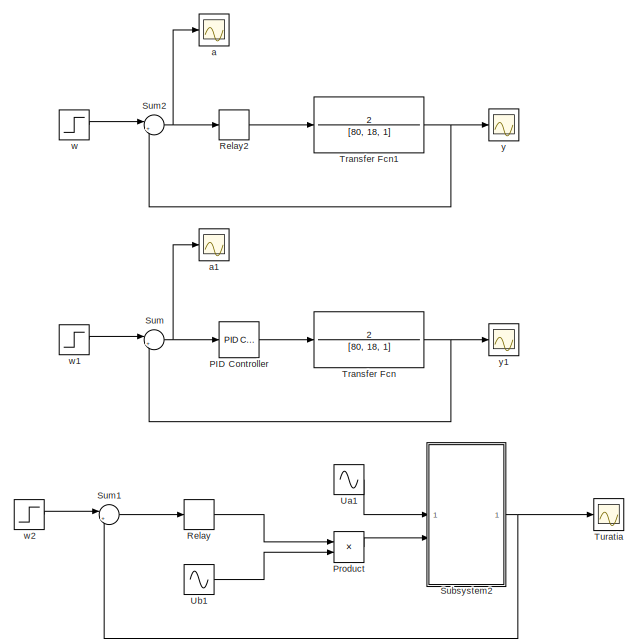
[diagram: root canvas - part 1/2, top center region]
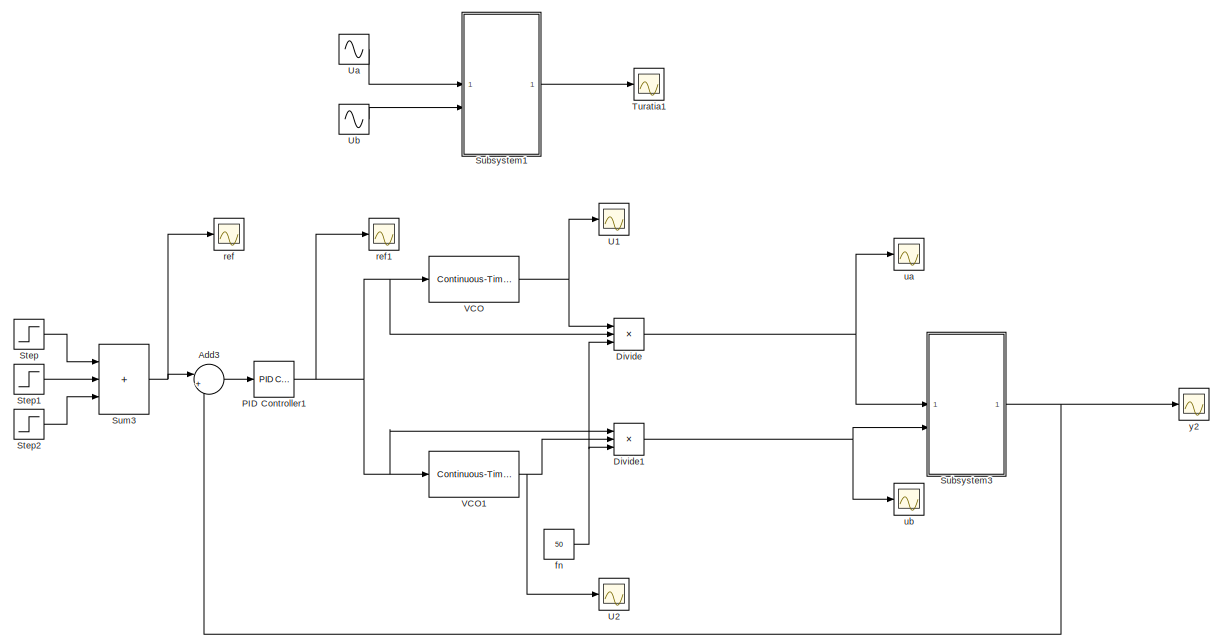
[diagram: root canvas - part 2/2, full width, bottom band]
MODEL slx_cc741e9ad4f9
KIND model
CONFIG AbsTol = auto
CONFIG EnableMultiTasking = off
CONFIG FixedStep = 0.001
CONFIG MaxStep = auto
CONFIG MinStep = auto
CONFIG RelTol = 1e-3
CONFIG SampleTimeConstraint = Unconstrained
CONFIG SolverName = VariableStepAuto
CONFIG StartTime = 0.0
CONFIG StopTime = 15
BLOCK [Sum] Add3
  Inputs = |+-
BLOCK [Product] Divide
  Inputs = **/
BLOCK [Product] Divide1
  Inputs = **/
BLOCK [Reference] PID Controller  REF=slpidlib/PID Controller
  LibrarySourceBlock = simulink/Continuous/PID Controller
  SourceBlock = slpidlib/PID Controller
  SourceType = PID 1dof
BLOCK [Reference] PID Controller1  REF=slpidlib/PID Controller
  LibrarySourceBlock = simulink/Continuous/PID Controller
  SourceBlock = slpidlib/PID Controller
  SourceType = PID 1dof
BLOCK [Product] Product
BLOCK [Relay] Relay
  OffOutputValue = -1
  OffSwitchValue = -0.01
  OnSwitchValue = 0.01
BLOCK [Relay] Relay2
  OffOutputValue = -1
  OffSwitchValue = -0.01
  OnSwitchValue = 0.01
BLOCK [Step] Step
  After = 1000
  SampleTime = 0
  Time = 0
BLOCK [Step] Step1
  After = 1000
  SampleTime = 0
  Time = 5
BLOCK [Step] Step2
  After = -500
  SampleTime = 0
  Time = 10
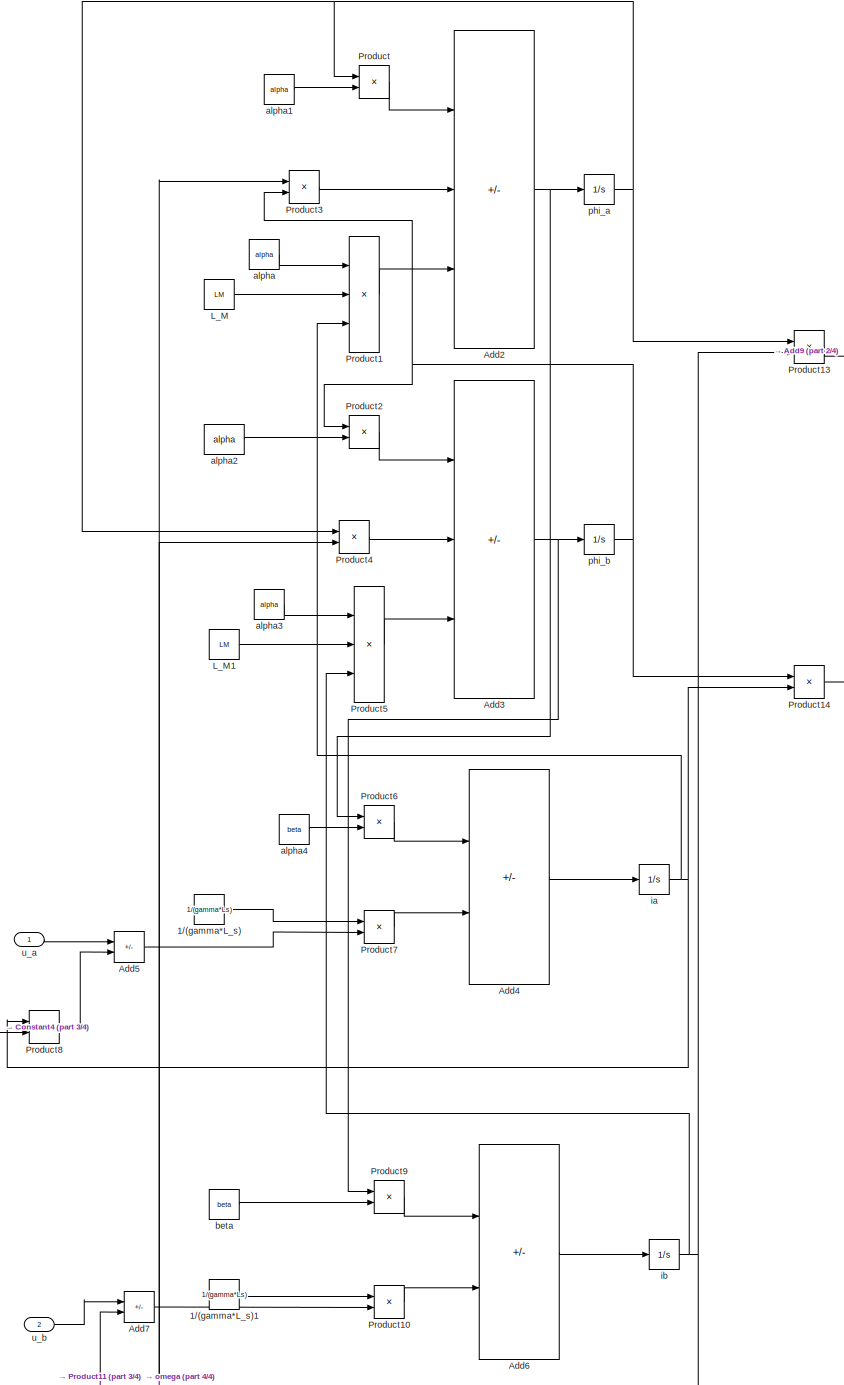
[diagram: Subsystem1 - part 1/4, center side, full height]
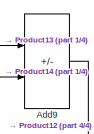
[diagram: Subsystem1 - part 2/4, top right region]
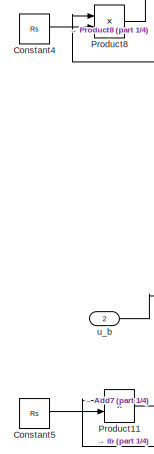
[diagram: Subsystem1 - part 3/4, bottom left region]
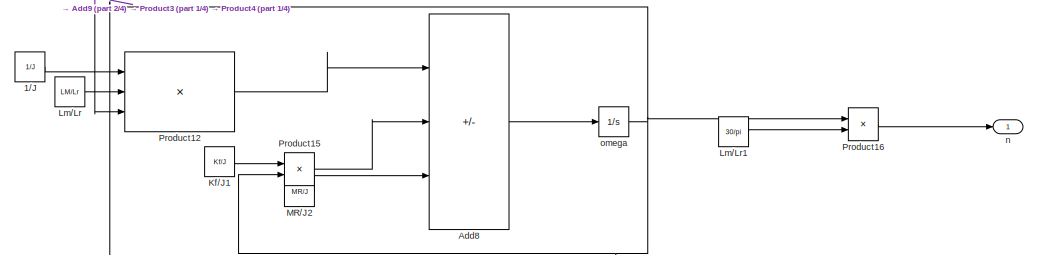
[diagram: Subsystem1 - part 4/4, full width, bottom band]
BLOCK [SubSystem] Subsystem1
BLOCK [Constant] Subsystem1/1//(gamma*L_s)
  Value = 1/(gamma*Ls)
BLOCK [Constant] Subsystem1/1//(gamma*L_s)1
  Value = 1/(gamma*Ls)
BLOCK [Constant] Subsystem1/1//J
  Value = 1/J
BLOCK [Sum] Subsystem1/Add2
  IconShape = rectangular
  Inputs = --+
BLOCK [Sum] Subsystem1/Add3
  IconShape = rectangular
  Inputs = -++
BLOCK [Sum] Subsystem1/Add4
  IconShape = rectangular
  Inputs = -+
BLOCK [Sum] Subsystem1/Add5
  IconShape = rectangular
  Inputs = +-
BLOCK [Sum] Subsystem1/Add6
  IconShape = rectangular
  Inputs = -+
BLOCK [Sum] Subsystem1/Add7
  IconShape = rectangular
  Inputs = +-
BLOCK [Sum] Subsystem1/Add8
  IconShape = rectangular
  Inputs = +--
BLOCK [Sum] Subsystem1/Add9
  IconShape = rectangular
  Inputs = +-
BLOCK [Constant] Subsystem1/Constant4
  Value = Rs
BLOCK [Constant] Subsystem1/Constant5
  Value = Rs
BLOCK [Constant] Subsystem1/Kf//J1
  Value = Kf/J
BLOCK [Constant] Subsystem1/L_M
  Value = LM
BLOCK [Constant] Subsystem1/L_M1
  Value = LM
BLOCK [Constant] Subsystem1/Lm//Lr
  Value = LM/Lr
BLOCK [Constant] Subsystem1/Lm//Lr1
  Value = 30/pi
BLOCK [Constant] Subsystem1/MR//J2
  Value = MR/J
BLOCK [Product] Subsystem1/Product
BLOCK [Product] Subsystem1/Product1
  Inputs = 3
BLOCK [Product] Subsystem1/Product10
BLOCK [Product] Subsystem1/Product11
BLOCK [Product] Subsystem1/Product12
  Inputs = 3
BLOCK [Product] Subsystem1/Product13
BLOCK [Product] Subsystem1/Product14
BLOCK [Product] Subsystem1/Product15
BLOCK [Product] Subsystem1/Product16
BLOCK [Product] Subsystem1/Product2
BLOCK [Product] Subsystem1/Product3
BLOCK [Product] Subsystem1/Product4
BLOCK [Product] Subsystem1/Product5
  Inputs = 3
BLOCK [Product] Subsystem1/Product6
BLOCK [Product] Subsystem1/Product7
BLOCK [Product] Subsystem1/Product8
BLOCK [Product] Subsystem1/Product9
BLOCK [Constant] Subsystem1/alpha
  Value = alpha
BLOCK [Constant] Subsystem1/alpha1
  Value = alpha
BLOCK [Constant] Subsystem1/alpha2
  Value = alpha
BLOCK [Constant] Subsystem1/alpha3
  Value = alpha
BLOCK [Constant] Subsystem1/alpha4
  Value = beta
BLOCK [Constant] Subsystem1/beta
  Value = beta
BLOCK [Integrator] Subsystem1/ia
BLOCK [Integrator] Subsystem1/ib
BLOCK [Outport] Subsystem1/n
BLOCK [Integrator] Subsystem1/omega
BLOCK [Integrator] Subsystem1/phi_a
BLOCK [Integrator] Subsystem1/phi_b
BLOCK [Inport] Subsystem1/u_a
BLOCK [Inport] Subsystem1/u_b
  Port = 2
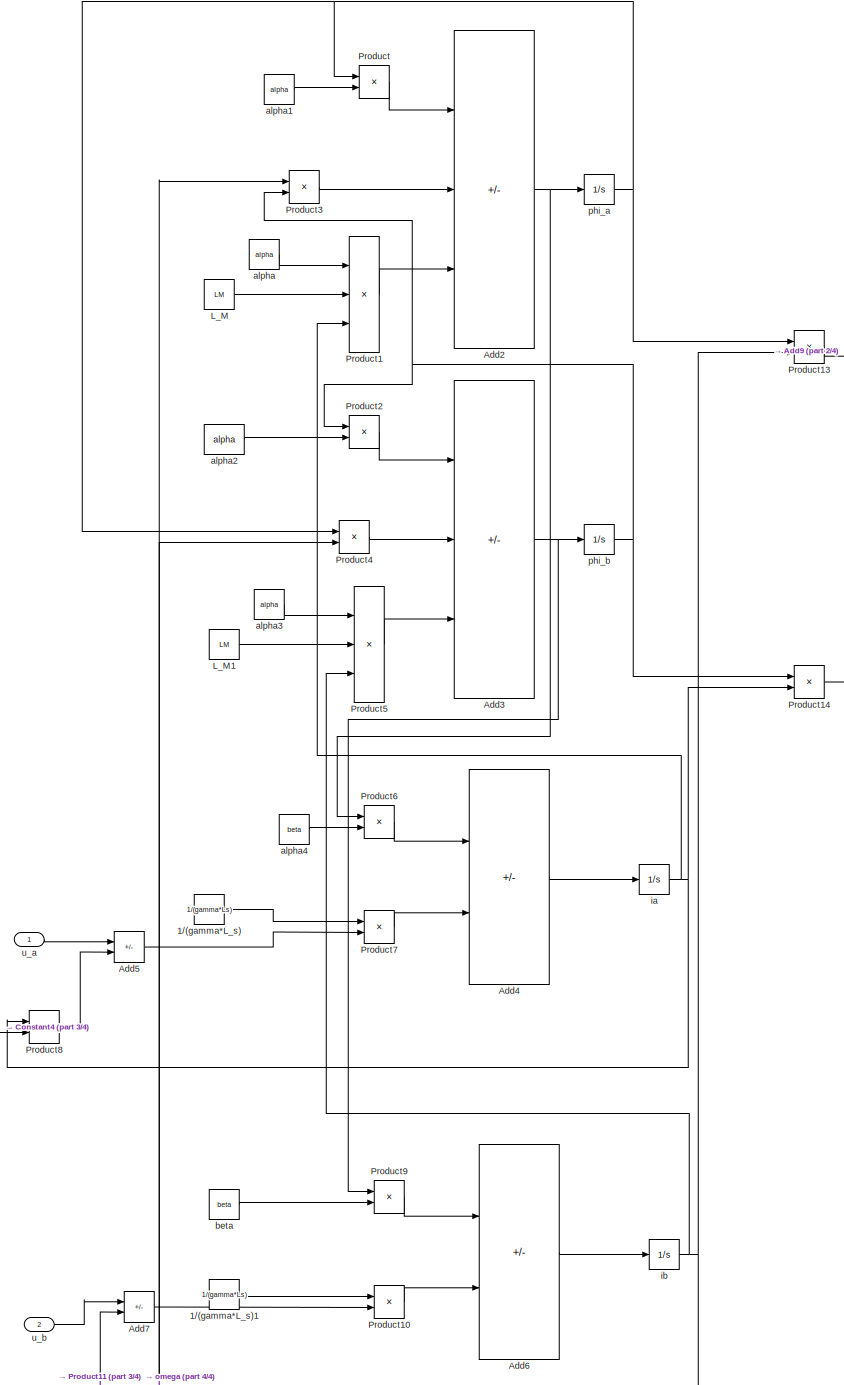
[diagram: Subsystem2 - part 1/4, center side, full height]
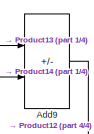
[diagram: Subsystem2 - part 2/4, top right region]
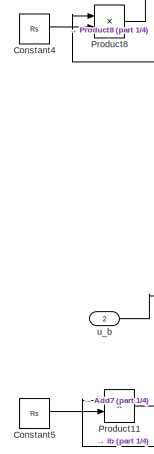
[diagram: Subsystem2 - part 3/4, bottom left region]
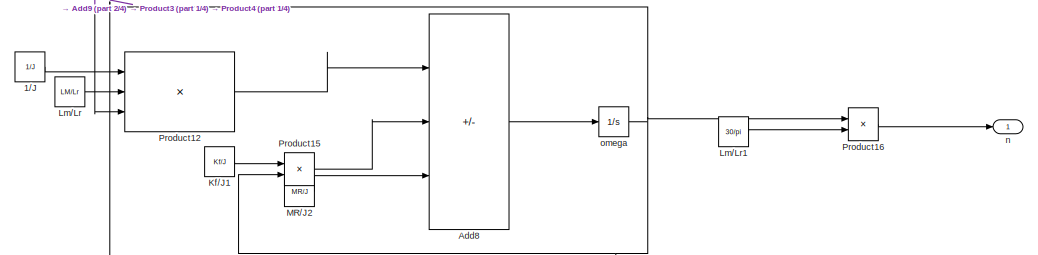
[diagram: Subsystem2 - part 4/4, full width, bottom band]
BLOCK [SubSystem] Subsystem2
BLOCK [Constant] Subsystem2/1//(gamma*L_s)
  Value = 1/(gamma*Ls)
BLOCK [Constant] Subsystem2/1//(gamma*L_s)1
  Value = 1/(gamma*Ls)
BLOCK [Constant] Subsystem2/1//J
  Value = 1/J
BLOCK [Sum] Subsystem2/Add2
  IconShape = rectangular
  Inputs = --+
BLOCK [Sum] Subsystem2/Add3
  IconShape = rectangular
  Inputs = -++
BLOCK [Sum] Subsystem2/Add4
  IconShape = rectangular
  Inputs = -+
BLOCK [Sum] Subsystem2/Add5
  IconShape = rectangular
  Inputs = +-
BLOCK [Sum] Subsystem2/Add6
  IconShape = rectangular
  Inputs = -+
BLOCK [Sum] Subsystem2/Add7
  IconShape = rectangular
  Inputs = +-
BLOCK [Sum] Subsystem2/Add8
  IconShape = rectangular
  Inputs = +--
BLOCK [Sum] Subsystem2/Add9
  IconShape = rectangular
  Inputs = +-
BLOCK [Constant] Subsystem2/Constant4
  Value = Rs
BLOCK [Constant] Subsystem2/Constant5
  Value = Rs
BLOCK [Constant] Subsystem2/Kf//J1
  Value = Kf/J
BLOCK [Constant] Subsystem2/L_M
  Value = LM
BLOCK [Constant] Subsystem2/L_M1
  Value = LM
BLOCK [Constant] Subsystem2/Lm//Lr
  Value = LM/Lr
BLOCK [Constant] Subsystem2/Lm//Lr1
  Value = 30/pi
BLOCK [Constant] Subsystem2/MR//J2
  Value = MR/J
BLOCK [Product] Subsystem2/Product
BLOCK [Product] Subsystem2/Product1
  Inputs = 3
BLOCK [Product] Subsystem2/Product10
BLOCK [Product] Subsystem2/Product11
BLOCK [Product] Subsystem2/Product12
  Inputs = 3
BLOCK [Product] Subsystem2/Product13
BLOCK [Product] Subsystem2/Product14
BLOCK [Product] Subsystem2/Product15
BLOCK [Product] Subsystem2/Product16
BLOCK [Product] Subsystem2/Product2
BLOCK [Product] Subsystem2/Product3
BLOCK [Product] Subsystem2/Product4
BLOCK [Product] Subsystem2/Product5
  Inputs = 3
BLOCK [Product] Subsystem2/Product6
BLOCK [Product] Subsystem2/Product7
BLOCK [Product] Subsystem2/Product8
BLOCK [Product] Subsystem2/Product9
BLOCK [Constant] Subsystem2/alpha
  Value = alpha
BLOCK [Constant] Subsystem2/alpha1
  Value = alpha
BLOCK [Constant] Subsystem2/alpha2
  Value = alpha
BLOCK [Constant] Subsystem2/alpha3
  Value = alpha
BLOCK [Constant] Subsystem2/alpha4
  Value = beta
BLOCK [Constant] Subsystem2/beta
  Value = beta
BLOCK [Integrator] Subsystem2/ia
BLOCK [Integrator] Subsystem2/ib
BLOCK [Outport] Subsystem2/n
BLOCK [Integrator] Subsystem2/omega
BLOCK [Integrator] Subsystem2/phi_a
BLOCK [Integrator] Subsystem2/phi_b
BLOCK [Inport] Subsystem2/u_a
BLOCK [Inport] Subsystem2/u_b
  Port = 2
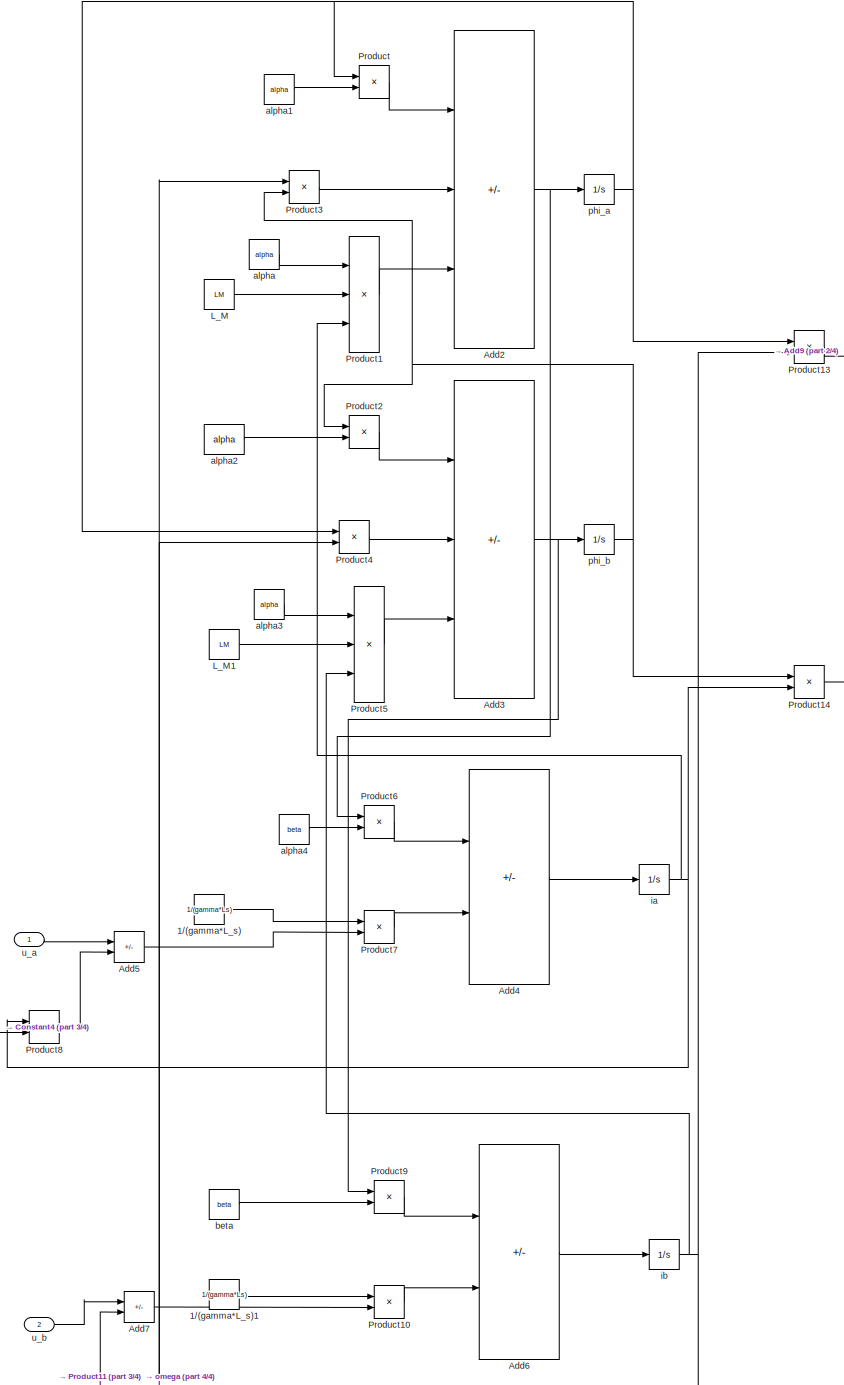
[diagram: Subsystem3 - part 1/4, center side, full height]
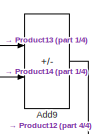
[diagram: Subsystem3 - part 2/4, top right region]
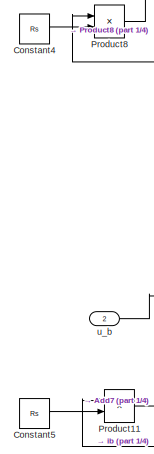
[diagram: Subsystem3 - part 3/4, bottom left region]
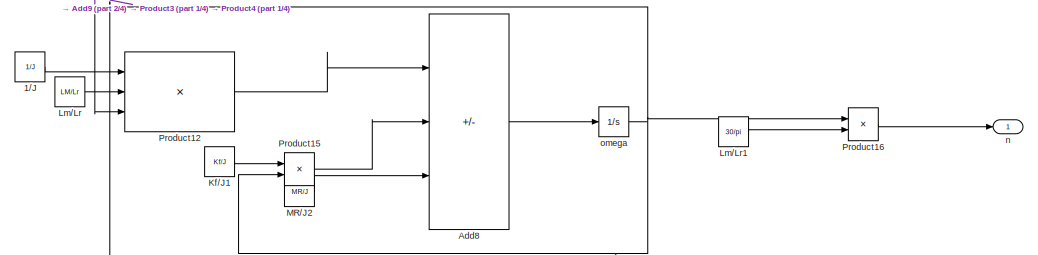
[diagram: Subsystem3 - part 4/4, full width, bottom band]
BLOCK [SubSystem] Subsystem3
BLOCK [Constant] Subsystem3/1//(gamma*L_s)
  Value = 1/(gamma*Ls)
BLOCK [Constant] Subsystem3/1//(gamma*L_s)1
  Value = 1/(gamma*Ls)
BLOCK [Constant] Subsystem3/1//J
  Value = 1/J
BLOCK [Sum] Subsystem3/Add2
  IconShape = rectangular
  Inputs = --+
BLOCK [Sum] Subsystem3/Add3
  IconShape = rectangular
  Inputs = -++
BLOCK [Sum] Subsystem3/Add4
  IconShape = rectangular
  Inputs = -+
BLOCK [Sum] Subsystem3/Add5
  IconShape = rectangular
  Inputs = +-
BLOCK [Sum] Subsystem3/Add6
  IconShape = rectangular
  Inputs = -+
BLOCK [Sum] Subsystem3/Add7
  IconShape = rectangular
  Inputs = +-
BLOCK [Sum] Subsystem3/Add8
  IconShape = rectangular
  Inputs = +--
BLOCK [Sum] Subsystem3/Add9
  IconShape = rectangular
  Inputs = +-
BLOCK [Constant] Subsystem3/Constant4
  Value = Rs
BLOCK [Constant] Subsystem3/Constant5
  Value = Rs
BLOCK [Constant] Subsystem3/Kf//J1
  Value = Kf/J
BLOCK [Constant] Subsystem3/L_M
  Value = LM
BLOCK [Constant] Subsystem3/L_M1
  Value = LM
BLOCK [Constant] Subsystem3/Lm//Lr
  Value = LM/Lr
BLOCK [Constant] Subsystem3/Lm//Lr1
  Value = 30/pi
BLOCK [Constant] Subsystem3/MR//J2
  Value = MR/J
BLOCK [Product] Subsystem3/Product
BLOCK [Product] Subsystem3/Product1
  Inputs = 3
BLOCK [Product] Subsystem3/Product10
BLOCK [Product] Subsystem3/Product11
BLOCK [Product] Subsystem3/Product12
  Inputs = 3
BLOCK [Product] Subsystem3/Product13
BLOCK [Product] Subsystem3/Product14
BLOCK [Product] Subsystem3/Product15
BLOCK [Product] Subsystem3/Product16
BLOCK [Product] Subsystem3/Product2
BLOCK [Product] Subsystem3/Product3
BLOCK [Product] Subsystem3/Product4
BLOCK [Product] Subsystem3/Product5
  Inputs = 3
BLOCK [Product] Subsystem3/Product6
BLOCK [Product] Subsystem3/Product7
BLOCK [Product] Subsystem3/Product8
BLOCK [Product] Subsystem3/Product9
BLOCK [Constant] Subsystem3/alpha
  Value = alpha
BLOCK [Constant] Subsystem3/alpha1
  Value = alpha
BLOCK [Constant] Subsystem3/alpha2
  Value = alpha
BLOCK [Constant] Subsystem3/alpha3
  Value = alpha
BLOCK [Constant] Subsystem3/alpha4
  Value = beta
BLOCK [Constant] Subsystem3/beta
  Value = beta
BLOCK [Integrator] Subsystem3/ia
BLOCK [Integrator] Subsystem3/ib
BLOCK [Outport] Subsystem3/n
BLOCK [Integrator] Subsystem3/omega
BLOCK [Integrator] Subsystem3/phi_a
BLOCK [Integrator] Subsystem3/phi_b
BLOCK [Inport] Subsystem3/u_a
BLOCK [Inport] Subsystem3/u_b
  Port = 2
BLOCK [Sum] Sum
  Inputs = |+-
BLOCK [Sum] Sum1
  Inputs = |+-
BLOCK [Sum] Sum2
  Inputs = |+-
BLOCK [Sum] Sum3
  IconShape = rectangular
  Inputs = +++
BLOCK [TransferFcn] Transfer Fcn
  Denominator = [80, 18, 1]
  Numerator = 2
BLOCK [TransferFcn] Transfer Fcn1
  Denominator = [80, 18, 1]
  Numerator = 2
BLOCK [Scope] Turatia
  Floating = off
  NumInputPorts = 1
  ScopeSpecificationString = Simulink.scopes.TimeScopeBlockCfg('CurrentConfiguration', extmgr.ConfigurationSet(extmgr.Configuration('Core','General UI',true),extmgr.Configuration('Core','Source UI',true),extmgr.Configuration('Sources','WiredSimulink',true,'DataLoggingVariableName','ScopeData1'),extmgr.Configuration('Visuals','Time Domain',true,'SerializedDisplays',{struct('MinYLimReal','-622.25708','MaxYLimReal','620.43283','...<+1412ch>
BLOCK [Scope] Turatia1
  Floating = off
  NumInputPorts = 1
  ScopeSpecificationString = Simulink.scopes.TimeScopeBlockCfg('CurrentConfiguration', extmgr.ConfigurationSet(extmgr.Configuration('Core','General UI',true),extmgr.Configuration('Core','Source UI',true),extmgr.Configuration('Sources','WiredSimulink',true,'DataLoggingVariableName','ScopeData4'),extmgr.Configuration('Visuals','Time Domain',true,'SerializedDisplays',{struct('MinYLimReal','-367.63394','MaxYLimReal','3308.70544',...<+1416ch>
BLOCK [Scope] U1
  Floating = off
  NumInputPorts = 1
  ScopeSpecificationString = Simulink.scopes.TimeScopeBlockCfg('CurrentConfiguration', extmgr.ConfigurationSet(extmgr.Configuration('Core','General UI',true),extmgr.Configuration('Core','Source UI',true),extmgr.Configuration('Sources','WiredSimulink',true,'DataLoggingVariableName','ScopeData1'),extmgr.Configuration('Visuals','Time Domain',true,'SerializedDisplays',{struct('MinYLimReal','-388.90873','MaxYLimReal','388.90873','...<+1440ch>
BLOCK [Scope] U2
  Floating = off
  NumInputPorts = 1
  ScopeSpecificationString = Simulink.scopes.TimeScopeBlockCfg('CurrentConfiguration', extmgr.ConfigurationSet(extmgr.Configuration('Core','General UI',true),extmgr.Configuration('Core','Source UI',true),extmgr.Configuration('Sources','WiredSimulink',true,'DataLoggingVariableName','ScopeData2'),extmgr.Configuration('Visuals','Time Domain',true,'SerializedDisplays',{struct('MinYLimReal','-263.82003','MaxYLimReal','32.72375','Y...<+1454ch>
BLOCK [Sin] Ua
  Amplitude = 220*sqrt(2)
  Frequency = 2*pi*f
  Phase = pi/2
  SampleTime = 0
BLOCK [Sin] Ua1
  Amplitude = 220*sqrt(2)
  Frequency = 2*pi*f
  Phase = pi/2
  SampleTime = 0
BLOCK [Sin] Ub
  Amplitude = 220*sqrt(2)
  Frequency = 2*pi*f
  SampleTime = 0
BLOCK [Sin] Ub1
  Amplitude = 220*sqrt(2)
  Frequency = 2*pi*f
  SampleTime = 0
BLOCK [Reference] VCO  REF=commsynccomp2/Continuous-Time
VCO
  SourceBlock = commsynccomp2/Continuous-Time\nVCO
  SourceType = Continuous-Time VCO
BLOCK [Reference] VCO1  REF=commsynccomp2/Continuous-Time
VCO
  SourceBlock = commsynccomp2/Continuous-Time\nVCO
  SourceType = Continuous-Time VCO
BLOCK [Scope] a
  Floating = off
  NumInputPorts = 1
  ScopeSpecificationString = Simulink.scopes.TimeScopeBlockCfg('CurrentConfiguration', extmgr.ConfigurationSet(extmgr.Configuration('Core','General UI',true),extmgr.Configuration('Core','Source UI',true),extmgr.Configuration('Sources','WiredSimulink',true,'DataLoggingVariableName','ScopeData5'),extmgr.Configuration('Visuals','Time Domain',true,'SerializedDisplays',{struct('MinYLimReal','-0.04831','MaxYLimReal','0.0483','YLabe...<+1360ch>
BLOCK [Scope] a1
  Floating = off
  NumInputPorts = 1
  ScopeSpecificationString = Simulink.scopes.TimeScopeBlockCfg('CurrentConfiguration', extmgr.ConfigurationSet(extmgr.Configuration('Core','General UI',true),extmgr.Configuration('Core','Source UI',true),extmgr.Configuration('Sources','WiredSimulink',true),extmgr.Configuration('Visuals','Time Domain',true,'SerializedDisplays',{struct('MinYLimReal','-1.10543','MaxYLimReal','1.23394','YLabelReal','','MinYLimMag','0.00000','MaxY...<+1323ch>
BLOCK [Constant] fn
  Value = 50
BLOCK [Scope] ref
  Floating = off
  NumInputPorts = 1
  ScopeSpecificationString = Simulink.scopes.TimeScopeBlockCfg('CurrentConfiguration', extmgr.ConfigurationSet(extmgr.Configuration('Core','General UI',true),extmgr.Configuration('Core','Source UI',true),extmgr.Configuration('Sources','WiredSimulink',true,'DataLoggingVariableName','ScopeData3'),extmgr.Configuration('Visuals','Time Domain',true,'SerializedDisplays',{struct('MinYLimReal','875.00000','MaxYLimReal','2125.00000','...<+1449ch>
BLOCK [Scope] ref1
  Floating = off
  NumInputPorts = 1
  ScopeSpecificationString = Simulink.scopes.TimeScopeBlockCfg('CurrentConfiguration', extmgr.ConfigurationSet(extmgr.Configuration('Core','General UI',true),extmgr.Configuration('Core','Source UI',true),extmgr.Configuration('Sources','WiredSimulink',true,'DataLoggingVariableName','ScopeData4'),extmgr.Configuration('Visuals','Time Domain',true,'SerializedDisplays',{struct('MinYLimReal','-1.21297','MaxYLimReal','37.91671','YLa...<+1443ch>
BLOCK [Scope] ua
  Floating = off
  NumInputPorts = 1
  ScopeSpecificationString = Simulink.scopes.TimeScopeBlockCfg('CurrentConfiguration', extmgr.ConfigurationSet(extmgr.Configuration('Core','General UI',true),extmgr.Configuration('Core','Source UI',true),extmgr.Configuration('Sources','WiredSimulink',true,'DataLoggingVariableName','ScopeData5'),extmgr.Configuration('Visuals','Time Domain',true,'SerializedDisplays',{struct('MinYLimReal','-264.46781','MaxYLimReal','264.48074','...<+1379ch>
BLOCK [Scope] ub
  Floating = off
  NumInputPorts = 1
  ScopeSpecificationString = Simulink.scopes.TimeScopeBlockCfg('CurrentConfiguration', extmgr.ConfigurationSet(extmgr.Configuration('Core','General UI',true),extmgr.Configuration('Core','Source UI',true),extmgr.Configuration('Sources','WiredSimulink',true,'DataLoggingVariableName','ScopeData6'),extmgr.Configuration('Visuals','Time Domain',true,'SerializedDisplays',{struct('MinYLimReal','-264.48191','MaxYLimReal','264.48091','...<+1380ch>
BLOCK [Step] w
  After = 0
  SampleTime = 0
BLOCK [Step] w1
  SampleTime = 0
BLOCK [Step] w2
  After = f
  Before = f
  SampleTime = 0
BLOCK [Scope] y
  Floating = off
  NumInputPorts = 1
  ScopeSpecificationString = Simulink.scopes.TimeScopeBlockCfg('CurrentConfiguration', extmgr.ConfigurationSet(extmgr.Configuration('Core','General UI',true),extmgr.Configuration('Core','Source UI',true),extmgr.Configuration('Sources','WiredSimulink',true,'DataLoggingVariableName','ScopeData6'),extmgr.Configuration('Visuals','Time Domain',true,'SerializedDisplays',{struct('MinYLimReal','-0.04681','MaxYLimReal','0.0456','YLabe...<+1399ch>
BLOCK [Scope] y1
  Floating = off
  NumInputPorts = 1
  ScopeSpecificationString = Simulink.scopes.TimeScopeBlockCfg('CurrentConfiguration', extmgr.ConfigurationSet(extmgr.Configuration('Core','General UI',true),extmgr.Configuration('Core','Source UI',true),extmgr.Configuration('Sources','WiredSimulink',true,'DataLoggingVariableName','ScopeData1'),extmgr.Configuration('Visuals','Time Domain',true,'SerializedDisplays',{struct('MinYLimReal','-0.23394','MaxYLimReal','2.10543','YLab...<+1404ch>
BLOCK [Scope] y2
  Floating = off
  NumInputPorts = 1
  ScopeSpecificationString = Simulink.scopes.TimeScopeBlockCfg('CurrentConfiguration', extmgr.ConfigurationSet(extmgr.Configuration('Core','General UI',true),extmgr.Configuration('Core','Source UI',true),extmgr.Configuration('Sources','WiredSimulink',true,'DataLoggingVariableName','ScopeData7'),extmgr.Configuration('Visuals','Time Domain',true,'SerializedDisplays',{struct('MinYLimReal','-249.96175','MaxYLimReal','2249.65573',...<+1455ch>
LINE Add3:1 -> PID Controller1:1
NET Divide1:1 -> Subsystem3:2, ub:1
NET Divide:1 -> Subsystem3:1, ua:1
NET PID Controller1:1 -> Divide1:1, Divide:2, VCO1:1, VCO:1, ref1:1
LINE PID Controller:1 -> Transfer Fcn:1
LINE Product:1 -> Subsystem2:2
LINE Relay2:1 -> Transfer Fcn1:1
LINE Relay:1 -> Product:1
LINE Step1:1 -> Sum3:2
LINE Step2:1 -> Sum3:3
LINE Step:1 -> Sum3:1
LINE Subsystem1/1//(gamma*L_s)1:1 -> Subsystem1/Product10:1
LINE Subsystem1/1//(gamma*L_s):1 -> Subsystem1/Product7:1
LINE Subsystem1/1//J:1 -> Subsystem1/Product12:1
NET Subsystem1/Add2:1 -> Subsystem1/Product6:1, Subsystem1/phi_a:1
NET Subsystem1/Add3:1 -> Subsystem1/Product9:1, Subsystem1/phi_b:1
LINE Subsystem1/Add4:1 -> Subsystem1/ia:1
LINE Subsystem1/Add5:1 -> Subsystem1/Product7:2
LINE Subsystem1/Add6:1 -> Subsystem1/ib:1
LINE Subsystem1/Add7:1 -> Subsystem1/Product10:2
LINE Subsystem1/Add8:1 -> Subsystem1/omega:1
LINE Subsystem1/Add9:1 -> Subsystem1/Product12:3
LINE Subsystem1/Constant4:1 -> Subsystem1/Product8:2
LINE Subsystem1/Constant5:1 -> Subsystem1/Product11:2
LINE Subsystem1/Kf//J1:1 -> Subsystem1/Product15:1
LINE Subsystem1/L_M1:1 -> Subsystem1/Product5:2
LINE Subsystem1/L_M:1 -> Subsystem1/Product1:2
LINE Subsystem1/Lm//Lr1:1 -> Subsystem1/Product16:2
LINE Subsystem1/Lm//Lr:1 -> Subsystem1/Product12:2
LINE Subsystem1/MR//J2:1 -> Subsystem1/Add8:3
LINE Subsystem1/Product10:1 -> Subsystem1/Add6:2
LINE Subsystem1/Product11:1 -> Subsystem1/Add7:2
LINE Subsystem1/Product12:1 -> Subsystem1/Add8:1
LINE Subsystem1/Product13:1 -> Subsystem1/Add9:1
LINE Subsystem1/Product14:1 -> Subsystem1/Add9:2
LINE Subsystem1/Product15:1 -> Subsystem1/Add8:2
LINE Subsystem1/Product16:1 -> Subsystem1/n:1
LINE Subsystem1/Product1:1 -> Subsystem1/Add2:3
LINE Subsystem1/Product2:1 -> Subsystem1/Add3:1
LINE Subsystem1/Product3:1 -> Subsystem1/Add2:2
LINE Subsystem1/Product4:1 -> Subsystem1/Add3:2
LINE Subsystem1/Product5:1 -> Subsystem1/Add3:3
LINE Subsystem1/Product6:1 -> Subsystem1/Add4:1
LINE Subsystem1/Product7:1 -> Subsystem1/Add4:2
LINE Subsystem1/Product8:1 -> Subsystem1/Add5:2
LINE Subsystem1/Product9:1 -> Subsystem1/Add6:1
LINE Subsystem1/Product:1 -> Subsystem1/Add2:1
LINE Subsystem1/alpha1:1 -> Subsystem1/Product:2
LINE Subsystem1/alpha2:1 -> Subsystem1/Product2:2
LINE Subsystem1/alpha3:1 -> Subsystem1/Product5:1
LINE Subsystem1/alpha4:1 -> Subsystem1/Product6:2
LINE Subsystem1/alpha:1 -> Subsystem1/Product1:1
LINE Subsystem1/beta:1 -> Subsystem1/Product9:2
NET Subsystem1/ia:1 -> Subsystem1/Product14:2, Subsystem1/Product1:3, Subsystem1/Product8:1
NET Subsystem1/ib:1 -> Subsystem1/Product11:1, Subsystem1/Product13:2, Subsystem1/Product5:3
NET Subsystem1/omega:1 -> Subsystem1/Product15:2, Subsystem1/Product16:1, Subsystem1/Product3:1, Subsystem1/Product4:2
NET Subsystem1/phi_a:1 -> Subsystem1/Product13:1, Subsystem1/Product4:1, Subsystem1/Product:1
NET Subsystem1/phi_b:1 -> Subsystem1/Product14:1, Subsystem1/Product2:1, Subsystem1/Product3:2
LINE Subsystem1/u_a:1 -> Subsystem1/Add5:1
LINE Subsystem1/u_b:1 -> Subsystem1/Add7:1
LINE Subsystem1:1 -> Turatia1:1
LINE Subsystem2/1//(gamma*L_s)1:1 -> Subsystem2/Product10:1
LINE Subsystem2/1//(gamma*L_s):1 -> Subsystem2/Product7:1
LINE Subsystem2/1//J:1 -> Subsystem2/Product12:1
NET Subsystem2/Add2:1 -> Subsystem2/Product6:1, Subsystem2/phi_a:1
NET Subsystem2/Add3:1 -> Subsystem2/Product9:1, Subsystem2/phi_b:1
LINE Subsystem2/Add4:1 -> Subsystem2/ia:1
LINE Subsystem2/Add5:1 -> Subsystem2/Product7:2
LINE Subsystem2/Add6:1 -> Subsystem2/ib:1
LINE Subsystem2/Add7:1 -> Subsystem2/Product10:2
LINE Subsystem2/Add8:1 -> Subsystem2/omega:1
LINE Subsystem2/Add9:1 -> Subsystem2/Product12:3
LINE Subsystem2/Constant4:1 -> Subsystem2/Product8:2
LINE Subsystem2/Constant5:1 -> Subsystem2/Product11:2
LINE Subsystem2/Kf//J1:1 -> Subsystem2/Product15:1
LINE Subsystem2/L_M1:1 -> Subsystem2/Product5:2
LINE Subsystem2/L_M:1 -> Subsystem2/Product1:2
LINE Subsystem2/Lm//Lr1:1 -> Subsystem2/Product16:2
LINE Subsystem2/Lm//Lr:1 -> Subsystem2/Product12:2
LINE Subsystem2/MR//J2:1 -> Subsystem2/Add8:3
LINE Subsystem2/Product10:1 -> Subsystem2/Add6:2
LINE Subsystem2/Product11:1 -> Subsystem2/Add7:2
LINE Subsystem2/Product12:1 -> Subsystem2/Add8:1
LINE Subsystem2/Product13:1 -> Subsystem2/Add9:1
LINE Subsystem2/Product14:1 -> Subsystem2/Add9:2
LINE Subsystem2/Product15:1 -> Subsystem2/Add8:2
LINE Subsystem2/Product16:1 -> Subsystem2/n:1
LINE Subsystem2/Product1:1 -> Subsystem2/Add2:3
LINE Subsystem2/Product2:1 -> Subsystem2/Add3:1
LINE Subsystem2/Product3:1 -> Subsystem2/Add2:2
LINE Subsystem2/Product4:1 -> Subsystem2/Add3:2
LINE Subsystem2/Product5:1 -> Subsystem2/Add3:3
LINE Subsystem2/Product6:1 -> Subsystem2/Add4:1
LINE Subsystem2/Product7:1 -> Subsystem2/Add4:2
LINE Subsystem2/Product8:1 -> Subsystem2/Add5:2
LINE Subsystem2/Product9:1 -> Subsystem2/Add6:1
LINE Subsystem2/Product:1 -> Subsystem2/Add2:1
LINE Subsystem2/alpha1:1 -> Subsystem2/Product:2
LINE Subsystem2/alpha2:1 -> Subsystem2/Product2:2
LINE Subsystem2/alpha3:1 -> Subsystem2/Product5:1
LINE Subsystem2/alpha4:1 -> Subsystem2/Product6:2
LINE Subsystem2/alpha:1 -> Subsystem2/Product1:1
LINE Subsystem2/beta:1 -> Subsystem2/Product9:2
NET Subsystem2/ia:1 -> Subsystem2/Product14:2, Subsystem2/Product1:3, Subsystem2/Product8:1
NET Subsystem2/ib:1 -> Subsystem2/Product11:1, Subsystem2/Product13:2, Subsystem2/Product5:3
NET Subsystem2/omega:1 -> Subsystem2/Product15:2, Subsystem2/Product16:1, Subsystem2/Product3:1, Subsystem2/Product4:2
NET Subsystem2/phi_a:1 -> Subsystem2/Product13:1, Subsystem2/Product4:1, Subsystem2/Product:1
NET Subsystem2/phi_b:1 -> Subsystem2/Product14:1, Subsystem2/Product2:1, Subsystem2/Product3:2
LINE Subsystem2/u_a:1 -> Subsystem2/Add5:1
LINE Subsystem2/u_b:1 -> Subsystem2/Add7:1
NET Subsystem2:1 -> Sum1:2, Turatia:1
LINE Subsystem3/1//(gamma*L_s)1:1 -> Subsystem3/Product10:1
LINE Subsystem3/1//(gamma*L_s):1 -> Subsystem3/Product7:1
LINE Subsystem3/1//J:1 -> Subsystem3/Product12:1
NET Subsystem3/Add2:1 -> Subsystem3/Product6:1, Subsystem3/phi_a:1
NET Subsystem3/Add3:1 -> Subsystem3/Product9:1, Subsystem3/phi_b:1
LINE Subsystem3/Add4:1 -> Subsystem3/ia:1
LINE Subsystem3/Add5:1 -> Subsystem3/Product7:2
LINE Subsystem3/Add6:1 -> Subsystem3/ib:1
LINE Subsystem3/Add7:1 -> Subsystem3/Product10:2
LINE Subsystem3/Add8:1 -> Subsystem3/omega:1
LINE Subsystem3/Add9:1 -> Subsystem3/Product12:3
LINE Subsystem3/Constant4:1 -> Subsystem3/Product8:2
LINE Subsystem3/Constant5:1 -> Subsystem3/Product11:2
LINE Subsystem3/Kf//J1:1 -> Subsystem3/Product15:1
LINE Subsystem3/L_M1:1 -> Subsystem3/Product5:2
LINE Subsystem3/L_M:1 -> Subsystem3/Product1:2
LINE Subsystem3/Lm//Lr1:1 -> Subsystem3/Product16:2
LINE Subsystem3/Lm//Lr:1 -> Subsystem3/Product12:2
LINE Subsystem3/MR//J2:1 -> Subsystem3/Add8:3
LINE Subsystem3/Product10:1 -> Subsystem3/Add6:2
LINE Subsystem3/Product11:1 -> Subsystem3/Add7:2
LINE Subsystem3/Product12:1 -> Subsystem3/Add8:1
LINE Subsystem3/Product13:1 -> Subsystem3/Add9:1
LINE Subsystem3/Product14:1 -> Subsystem3/Add9:2
LINE Subsystem3/Product15:1 -> Subsystem3/Add8:2
LINE Subsystem3/Product16:1 -> Subsystem3/n:1
LINE Subsystem3/Product1:1 -> Subsystem3/Add2:3
LINE Subsystem3/Product2:1 -> Subsystem3/Add3:1
LINE Subsystem3/Product3:1 -> Subsystem3/Add2:2
LINE Subsystem3/Product4:1 -> Subsystem3/Add3:2
LINE Subsystem3/Product5:1 -> Subsystem3/Add3:3
LINE Subsystem3/Product6:1 -> Subsystem3/Add4:1
LINE Subsystem3/Product7:1 -> Subsystem3/Add4:2
LINE Subsystem3/Product8:1 -> Subsystem3/Add5:2
LINE Subsystem3/Product9:1 -> Subsystem3/Add6:1
LINE Subsystem3/Product:1 -> Subsystem3/Add2:1
LINE Subsystem3/alpha1:1 -> Subsystem3/Product:2
LINE Subsystem3/alpha2:1 -> Subsystem3/Product2:2
LINE Subsystem3/alpha3:1 -> Subsystem3/Product5:1
LINE Subsystem3/alpha4:1 -> Subsystem3/Product6:2
LINE Subsystem3/alpha:1 -> Subsystem3/Product1:1
LINE Subsystem3/beta:1 -> Subsystem3/Product9:2
NET Subsystem3/ia:1 -> Subsystem3/Product14:2, Subsystem3/Product1:3, Subsystem3/Product8:1
NET Subsystem3/ib:1 -> Subsystem3/Product11:1, Subsystem3/Product13:2, Subsystem3/Product5:3
NET Subsystem3/omega:1 -> Subsystem3/Product15:2, Subsystem3/Product16:1, Subsystem3/Product3:1, Subsystem3/Product4:2
NET Subsystem3/phi_a:1 -> Subsystem3/Product13:1, Subsystem3/Product4:1, Subsystem3/Product:1
NET Subsystem3/phi_b:1 -> Subsystem3/Product14:1, Subsystem3/Product2:1, Subsystem3/Product3:2
LINE Subsystem3/u_a:1 -> Subsystem3/Add5:1
LINE Subsystem3/u_b:1 -> Subsystem3/Add7:1
NET Subsystem3:1 -> Add3:2, y2:1
LINE Sum1:1 -> Relay:1
NET Sum2:1 -> Relay2:1, a:1
NET Sum3:1 -> Add3:1, ref:1
NET Sum:1 -> PID Controller:1, a1:1
NET Transfer Fcn1:1 -> Sum2:2, y:1
NET Transfer Fcn:1 -> Sum:2, y1:1
LINE Ua1:1 -> Subsystem2:1
LINE Ua:1 -> Subsystem1:1
LINE Ub1:1 -> Product:2
LINE Ub:1 -> Subsystem1:2
NET VCO1:1 -> Divide1:2, U2:1
NET VCO:1 -> Divide:1, U1:1
NET fn:1 -> Divide1:3, Divide:3
LINE w1:1 -> Sum:1
LINE w2:1 -> Sum1:1
LINE w:1 -> Sum2:1
note: NET lines group one-source signal fan-out (src -> all destinations, sorted); 1:1 wires keep LINE
